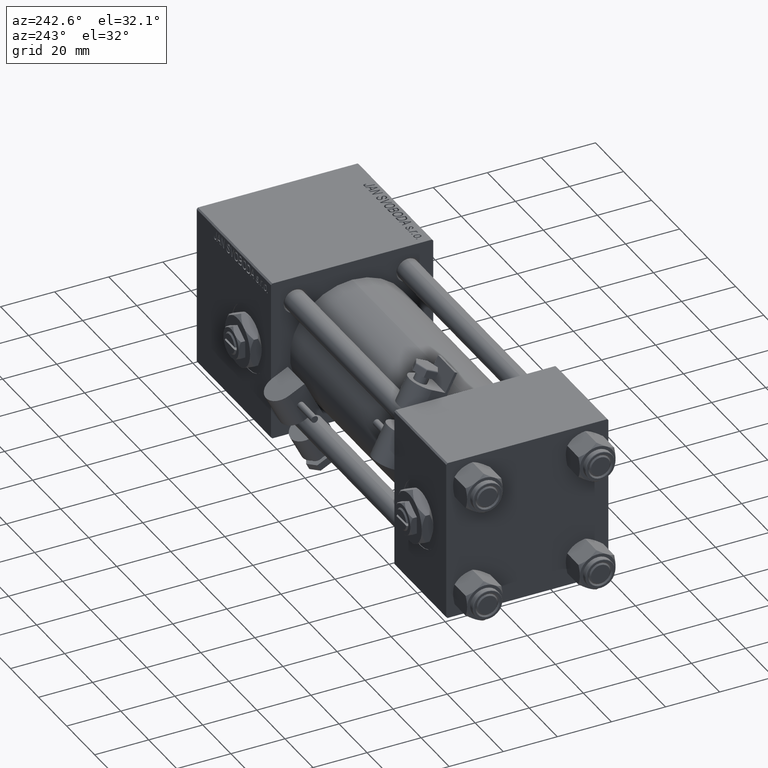
[diagram: clean part render]
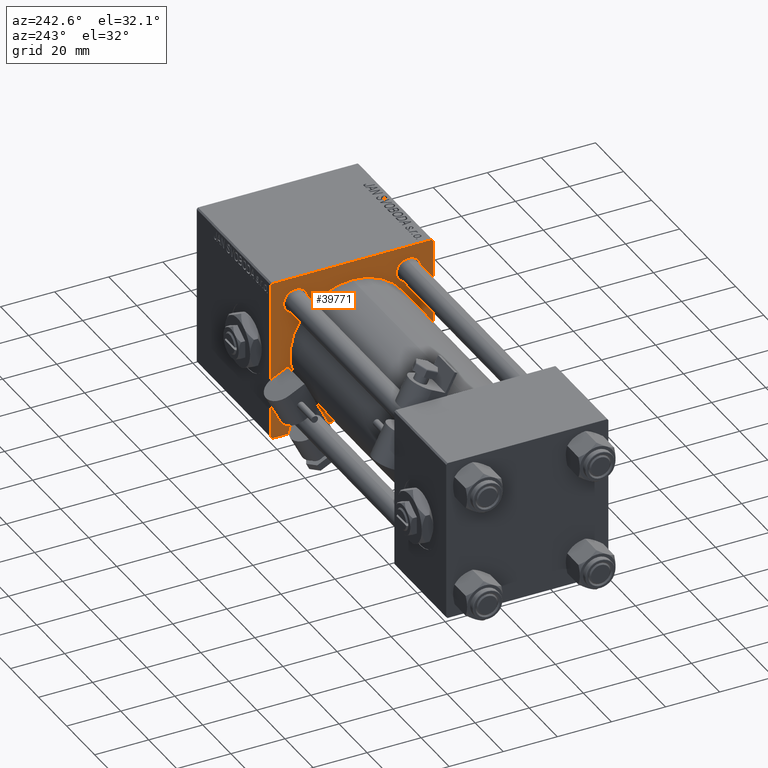
[diagram: same view with one face highlighted and labeled with its STEP entity id]
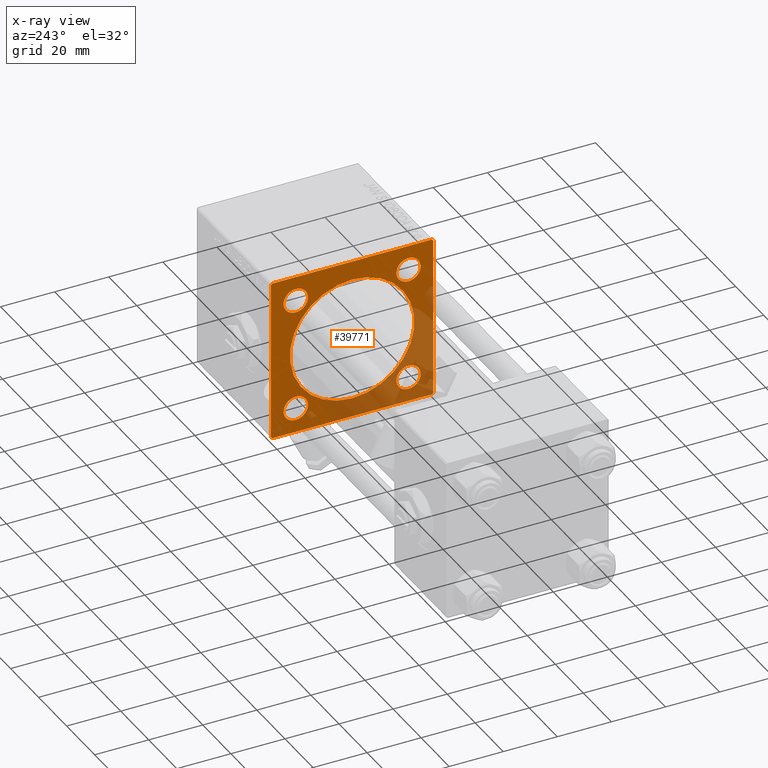
[diagram: x-ray of the same camera — body ghosted, the highlighted face saturated]
A machine part, auxiliary view. The second image highlights one B-rep face of the part: STEP entity #39771.
The next image is the same camera in x-ray: the body ghosted, the highlighted face saturated — about 33% of this face is hidden behind the body in this view.
In plain terms, the highlighted planar face has unit normal (-1, 0, 0).
Its self-contained STEP definition (entity closure, byte-faithful):
#202 = DIRECTION ( 'NONE',  ( 1.000000000000000000, -0.000000000000000000, 0.000000000000000000 ) ) ;
#314 = AXIS2_PLACEMENT_3D ( 'NONE', #37153, #202, #16663 ) ;
#448 = LINE ( 'NONE', #37410, #18639 ) ;
#710 = DIRECTION ( 'NONE',  ( -0.000000000000000000, -0.7071067811865672237, -0.7071067811865279218 ) ) ;
#795 = CARTESIAN_POINT ( 'NONE',  ( 125.0000000000000000, -2.602085213965210642E-15, 0.000000000000000000 ) ) ;
#1149 = VECTOR ( 'NONE', #19885, 1000.000000000000000 ) ;
#1462 = EDGE_CURVE ( 'NONE', #39950, #11173, #36284, .T. ) ;
#1861 = VERTEX_POINT ( 'NONE', #31246 ) ;
#2158 = DIRECTION ( 'NONE',  ( 0.000000000000000000, -1.000000000000000000, -1.156482317317871478E-16 ) ) ;
#2314 = LINE ( 'NONE', #35224, #49119 ) ;
#2408 = ORIENTED_EDGE ( 'NONE', *, *, #21132, .T. ) ;
#3061 = VERTEX_POINT ( 'NONE', #29158 ) ;
#3155 = ORIENTED_EDGE ( 'NONE', *, *, #1462, .T. ) ;
#3303 = CARTESIAN_POINT ( 'NONE',  ( 125.0000000000000000, -20.84999999999999076, 20.85000000000000497 ) ) ;
#3321 = DIRECTION ( 'NONE',  ( 1.000000000000000000, -0.000000000000000000, 0.000000000000000000 ) ) ;
#3421 = LINE ( 'NONE', #35498, #1149 ) ;
#3822 = VECTOR ( 'NONE', #24135, 1000.000000000000114 ) ;
#4019 = CIRCLE ( 'NONE', #51346, 4.500000000000007105 ) ;
#4496 = LINE ( 'NONE', #29045, #21395 ) ;
#4565 = EDGE_CURVE ( 'NONE', #39633, #49781, #47693, .T. ) ;
#4807 = CIRCLE ( 'NONE', #34922, 4.500000000000007105 ) ;
#5218 = EDGE_CURVE ( 'NONE', #34499, #1861, #26935, .T. ) ;
#6560 = VERTEX_POINT ( 'NONE', #13961 ) ;
#7134 = CARTESIAN_POINT ( 'NONE',  ( 125.0000000000000000, 2.146024240737016609E-16, -23.00000000000000000 ) ) ;
#7144 = CARTESIAN_POINT ( 'NONE',  ( 125.0000000000000000, -20.84999999999999076, -16.34999999999999787 ) ) ;
#7484 = CARTESIAN_POINT ( 'NONE',  ( 125.0000000000000000, 30.00000000000000000, -29.49999999999997868 ) ) ;
#7641 = EDGE_CURVE ( 'NONE', #11173, #39950, #44233, .T. ) ;
#7802 = EDGE_LOOP ( 'NONE', ( #21232, #3155 ) ) ;
#8897 = CARTESIAN_POINT ( 'NONE',  ( 125.0000000000000000, -20.84999999999999076, 20.85000000000000497 ) ) ;
#9313 = ORIENTED_EDGE ( 'NONE', *, *, #4565, .T. ) ;
#9664 = CARTESIAN_POINT ( 'NONE',  ( 125.0000000000000000, 29.50000000000000000, 30.00000000000000000 ) ) ;
#9892 = ORIENTED_EDGE ( 'NONE', *, *, #25744, .T. ) ;
#10054 = DIRECTION ( 'NONE',  ( 1.000000000000000000, -0.000000000000000000, 0.000000000000000000 ) ) ;
#11016 = FACE_BOUND ( 'NONE', #34305, .T. ) ;
#11173 = VERTEX_POINT ( 'NONE', #45130 ) ;
#11300 = EDGE_LOOP ( 'NONE', ( #28769, #2408 ) ) ;
#11636 = VERTEX_POINT ( 'NONE', #23184 ) ;
#12299 = VERTEX_POINT ( 'NONE', #36823 ) ;
#12500 = LINE ( 'NONE', #41089, #3822 ) ;
#12579 = DIRECTION ( 'NONE',  ( 0.000000000000000000, 0.000000000000000000, -1.000000000000000000 ) ) ;
#12878 = ORIENTED_EDGE ( 'NONE', *, *, #21418, .T. ) ;
#13107 = EDGE_CURVE ( 'NONE', #49327, #12299, #41728, .T. ) ;
#13958 = EDGE_CURVE ( 'NONE', #43784, #39633, #23221, .T. ) ;
#13961 = CARTESIAN_POINT ( 'NONE',  ( 125.0000000000000000, 20.84999999999999787, -25.35000000000000853 ) ) ;
#14273 = FACE_BOUND ( 'NONE', #11300, .T. ) ;
#14931 = DIRECTION ( 'NONE',  ( 1.000000000000000000, -0.000000000000000000, 0.000000000000000000 ) ) ;
#15248 = VERTEX_POINT ( 'NONE', #45786 ) ;
#15404 = DIRECTION ( 'NONE',  ( 0.000000000000000000, 0.7071067811865474617, -0.7071067811865474617 ) ) ;
#15670 = ORIENTED_EDGE ( 'NONE', *, *, #5218, .T. ) ;
#15720 = DIRECTION ( 'NONE',  ( 1.000000000000000000, 0.000000000000000000, 0.000000000000000000 ) ) ;
#15756 = DIRECTION ( 'NONE',  ( 0.000000000000000000, 0.000000000000000000, 1.000000000000000000 ) ) ;
#15930 = DIRECTION ( 'NONE',  ( 1.000000000000000000, -0.000000000000000000, 0.000000000000000000 ) ) ;
#16042 = ORIENTED_EDGE ( 'NONE', *, *, #46402, .T. ) ;
#16083 = EDGE_CURVE ( 'NONE', #12299, #49327, #4807, .T. ) ;
#16246 = CIRCLE ( 'NONE', #34295, 4.500000000000007105 ) ;
#16400 = DIRECTION ( 'NONE',  ( 0.000000000000000000, 0.000000000000000000, 1.000000000000000000 ) ) ;
#16663 = DIRECTION ( 'NONE',  ( 0.000000000000000000, 0.000000000000000000, 1.000000000000000000 ) ) ;
#17097 = AXIS2_PLACEMENT_3D ( 'NONE', #52859, #15930, #32359 ) ;
#17785 = DIRECTION ( 'NONE',  ( 0.000000000000000000, 0.000000000000000000, -1.000000000000000000 ) ) ;
#18269 = EDGE_LOOP ( 'NONE', ( #37451, #20677, #49110, #25771, #53250, #47346, #9313, #12878 ) ) ;
#18639 = VECTOR ( 'NONE', #710, 1000.000000000000000 ) ;
#18688 = DIRECTION ( 'NONE',  ( 0.000000000000000000, 0.000000000000000000, 1.000000000000000000 ) ) ;
#18867 = CARTESIAN_POINT ( 'NONE',  ( 125.0000000000000000, 30.00000000000000000, 30.00000000000000000 ) ) ;
#18934 = CIRCLE ( 'NONE', #22405, 4.500000000000007105 ) ;
#19060 = DIRECTION ( 'NONE',  ( 0.000000000000000000, -0.7071067811865474617, 0.7071067811865474617 ) ) ;
#19128 = DIRECTION ( 'NONE',  ( -1.000000000000000000, 0.000000000000000000, -0.000000000000000000 ) ) ;
#19714 = CARTESIAN_POINT ( 'NONE',  ( 125.0000000000000000, -20.84999999999999076, 25.35000000000001208 ) ) ;
#19724 = DIRECTION ( 'NONE',  ( 0.000000000000000000, 0.000000000000000000, 1.000000000000000000 ) ) ;
#19885 = DIRECTION ( 'NONE',  ( 0.000000000000000000, -1.000000000000000000, -1.156482317317871478E-16 ) ) ;
#20677 = ORIENTED_EDGE ( 'NONE', *, *, #34074, .T. ) ;
#21132 = EDGE_CURVE ( 'NONE', #41291, #22195, #4019, .T. ) ;
#21232 = ORIENTED_EDGE ( 'NONE', *, *, #7641, .T. ) ;
#21395 = VECTOR ( 'NONE', #12579, 1000.000000000000000 ) ;
#21418 = EDGE_CURVE ( 'NONE', #49781, #3061, #448, .T. ) ;
#22092 = DIRECTION ( 'NONE',  ( 1.000000000000000000, 0.000000000000000000, 0.000000000000000000 ) ) ;
#22104 = PLANE ( 'NONE',  #47623 ) ;
#22195 = VERTEX_POINT ( 'NONE', #19714 ) ;
#22405 = AXIS2_PLACEMENT_3D ( 'NONE', #8897, #3321, #52675 ) ;
#22929 = EDGE_LOOP ( 'NONE', ( #9892, #16042 ) ) ;
#23140 = EDGE_CURVE ( 'NONE', #1861, #34499, #28213, .T. ) ;
#23184 = CARTESIAN_POINT ( 'NONE',  ( 125.0000000000000000, 20.84999999999999787, -16.34999999999999432 ) ) ;
#23221 = LINE ( 'NONE', #31561, #47726 ) ;
#23849 = CARTESIAN_POINT ( 'NONE',  ( 125.0000000000000000, 20.84999999999999787, 20.85000000000000142 ) ) ;
#23949 = AXIS2_PLACEMENT_3D ( 'NONE', #795, #22092, #17785 ) ;
#24135 = DIRECTION ( 'NONE',  ( -0.000000000000000000, 0.7071067811865474617, 0.7071067811865474617 ) ) ;
#24603 = DIRECTION ( 'NONE',  ( 1.000000000000000000, -0.000000000000000000, 0.000000000000000000 ) ) ;
#24828 = CIRCLE ( 'NONE', #17097, 4.500000000000007105 ) ;
#25744 = EDGE_CURVE ( 'NONE', #11636, #6560, #16246, .T. ) ;
#25771 = ORIENTED_EDGE ( 'NONE', *, *, #42644, .T. ) ;
#26411 = FACE_OUTER_BOUND ( 'NONE', #18269, .T. ) ;
#26881 = CARTESIAN_POINT ( 'NONE',  ( 125.0000000000000000, 20.84999999999999787, 16.34999999999999432 ) ) ;
#26935 = CIRCLE ( 'NONE', #45890, 23.00000000000000000 ) ;
#27889 = CARTESIAN_POINT ( 'NONE',  ( 125.0000000000000000, -29.50000000000000000, 29.99999999999999289 ) ) ;
#28118 = CARTESIAN_POINT ( 'NONE',  ( 125.0000000000000000, -2.602085213965210642E-15, 0.000000000000000000 ) ) ;
#28213 = CIRCLE ( 'NONE', #23949, 23.00000000000000000 ) ;
#28378 = DIRECTION ( 'NONE',  ( 0.000000000000000000, 0.000000000000000000, -1.000000000000000000 ) ) ;
#28382 = CARTESIAN_POINT ( 'NONE',  ( 125.0000000000000000, -30.00000000000000000, 29.49999999999999289 ) ) ;
#28645 = DIRECTION ( 'NONE',  ( 0.000000000000000000, 0.000000000000000000, 1.000000000000000000 ) ) ;
#28769 = ORIENTED_EDGE ( 'NONE', *, *, #32335, .T. ) ;
#28888 = CARTESIAN_POINT ( 'NONE',  ( 125.0000000000000000, 30.00000000000000000, 29.50000000000000000 ) ) ;
#29016 = CARTESIAN_POINT ( 'NONE',  ( 125.0000000000000000, -20.84999999999999076, 16.34999999999999787 ) ) ;
#29045 = CARTESIAN_POINT ( 'NONE',  ( 125.0000000000000000, -30.00000000000000000, 29.99999999999999289 ) ) ;
#29096 = VERTEX_POINT ( 'NONE', #37984 ) ;
#29158 = CARTESIAN_POINT ( 'NONE',  ( 125.0000000000000000, 29.49999999999997158, -29.99999999999999289 ) ) ;
#30330 = VECTOR ( 'NONE', #47969, 1000.000000000000000 ) ;
#30974 = FACE_BOUND ( 'NONE', #49251, .T. ) ;
#31246 = CARTESIAN_POINT ( 'NONE',  ( 125.0000000000000000, -2.602085213965210642E-15, 23.00000000000000000 ) ) ;
#31561 = CARTESIAN_POINT ( 'NONE',  ( 125.0000000000000000, 29.74999999999999645, 29.74999999999999645 ) ) ;
#32335 = EDGE_CURVE ( 'NONE', #22195, #41291, #18934, .T. ) ;
#32359 = DIRECTION ( 'NONE',  ( 0.000000000000000000, 0.000000000000000000, 1.000000000000000000 ) ) ;
#33099 = AXIS2_PLACEMENT_3D ( 'NONE', #36897, #41450, #16400 ) ;
#34074 = EDGE_CURVE ( 'NONE', #15248, #29096, #2314, .T. ) ;
#34295 = AXIS2_PLACEMENT_3D ( 'NONE', #49616, #49348, #19724 ) ;
#34305 = EDGE_LOOP ( 'NONE', ( #49297, #15670 ) ) ;
#34499 = VERTEX_POINT ( 'NONE', #7134 ) ;
#34922 = AXIS2_PLACEMENT_3D ( 'NONE', #38651, #10054, #18688 ) ;
#35224 = CARTESIAN_POINT ( 'NONE',  ( 125.0000000000000000, -29.74999999999999645, -29.74999999999999645 ) ) ;
#35498 = CARTESIAN_POINT ( 'NONE',  ( 125.0000000000000000, 30.00000000000000000, -29.99999999999999289 ) ) ;
#35864 = VECTOR ( 'NONE', #2158, 1000.000000000000000 ) ;
#36284 = CIRCLE ( 'NONE', #50899, 4.500000000000007105 ) ;
#36617 = VERTEX_POINT ( 'NONE', #27889 ) ;
#36823 = CARTESIAN_POINT ( 'NONE',  ( 125.0000000000000000, -20.84999999999999076, -25.35000000000001208 ) ) ;
#36897 = CARTESIAN_POINT ( 'NONE',  ( 125.0000000000000000, -20.84999999999999076, -20.85000000000000497 ) ) ;
#37153 = CARTESIAN_POINT ( 'NONE',  ( 125.0000000000000000, 20.84999999999999787, 20.85000000000000142 ) ) ;
#37410 = CARTESIAN_POINT ( 'NONE',  ( 125.0000000000000000, 29.74999999999916156, -29.75000000000081712 ) ) ;
#37451 = ORIENTED_EDGE ( 'NONE', *, *, #40113, .T. ) ;
#37984 = CARTESIAN_POINT ( 'NONE',  ( 125.0000000000000000, -30.00000000000000000, -29.49999999999998579 ) ) ;
#38651 = CARTESIAN_POINT ( 'NONE',  ( 125.0000000000000000, -20.84999999999999076, -20.85000000000000497 ) ) ;
#39329 = FACE_BOUND ( 'NONE', #22929, .T. ) ;
#39633 = VERTEX_POINT ( 'NONE', #28888 ) ;
#39771 = ADVANCED_FACE ( 'NONE', ( #14273, #47408, #39329, #30974, #11016, #26411 ), #22104, .T. ) ;
#39950 = VERTEX_POINT ( 'NONE', #26881 ) ;
#40113 = EDGE_CURVE ( 'NONE', #3061, #15248, #3421, .T. ) ;
#41089 = CARTESIAN_POINT ( 'NONE',  ( 125.0000000000000000, -29.74999999999999645, 29.74999999999999645 ) ) ;
#41291 = VERTEX_POINT ( 'NONE', #29016 ) ;
#41450 = DIRECTION ( 'NONE',  ( 1.000000000000000000, -0.000000000000000000, 0.000000000000000000 ) ) ;
#41557 = ORIENTED_EDGE ( 'NONE', *, *, #16083, .T. ) ;
#41728 = CIRCLE ( 'NONE', #33099, 4.500000000000007105 ) ;
#42591 = CARTESIAN_POINT ( 'NONE',  ( 125.0000000000000000, 0.000000000000000000, 0.000000000000000000 ) ) ;
#42644 = EDGE_CURVE ( 'NONE', #46905, #36617, #12500, .T. ) ;
#43425 = LINE ( 'NONE', #51245, #35864 ) ;
#43650 = DIRECTION ( 'NONE',  ( -0.000000000000000000, 0.000000000000000000, 1.000000000000000000 ) ) ;
#43784 = VERTEX_POINT ( 'NONE', #9664 ) ;
#44233 = CIRCLE ( 'NONE', #314, 4.500000000000007105 ) ;
#44797 = EDGE_CURVE ( 'NONE', #43784, #36617, #43425, .T. ) ;
#45130 = CARTESIAN_POINT ( 'NONE',  ( 125.0000000000000000, 20.84999999999999787, 25.35000000000000853 ) ) ;
#45684 = ORIENTED_EDGE ( 'NONE', *, *, #13107, .T. ) ;
#45786 = CARTESIAN_POINT ( 'NONE',  ( 125.0000000000000000, -29.50000000000000000, -30.00000000000000000 ) ) ;
#45890 = AXIS2_PLACEMENT_3D ( 'NONE', #28118, #15720, #28378 ) ;
#46402 = EDGE_CURVE ( 'NONE', #6560, #11636, #24828, .T. ) ;
#46905 = VERTEX_POINT ( 'NONE', #28382 ) ;
#47346 = ORIENTED_EDGE ( 'NONE', *, *, #13958, .T. ) ;
#47408 = FACE_BOUND ( 'NONE', #7802, .T. ) ;
#47623 = AXIS2_PLACEMENT_3D ( 'NONE', #42591, #19128, #43650 ) ;
#47693 = LINE ( 'NONE', #18867, #30330 ) ;
#47726 = VECTOR ( 'NONE', #15404, 1000.000000000000114 ) ;
#47969 = DIRECTION ( 'NONE',  ( 0.000000000000000000, 0.000000000000000000, -1.000000000000000000 ) ) ;
#49110 = ORIENTED_EDGE ( 'NONE', *, *, #50655, .F. ) ;
#49119 = VECTOR ( 'NONE', #19060, 1000.000000000000114 ) ;
#49251 = EDGE_LOOP ( 'NONE', ( #45684, #41557 ) ) ;
#49297 = ORIENTED_EDGE ( 'NONE', *, *, #23140, .T. ) ;
#49327 = VERTEX_POINT ( 'NONE', #7144 ) ;
#49348 = DIRECTION ( 'NONE',  ( 1.000000000000000000, -0.000000000000000000, 0.000000000000000000 ) ) ;
#49616 = CARTESIAN_POINT ( 'NONE',  ( 125.0000000000000000, 20.84999999999999787, -20.85000000000000142 ) ) ;
#49781 = VERTEX_POINT ( 'NONE', #7484 ) ;
#50655 = EDGE_CURVE ( 'NONE', #46905, #29096, #4496, .T. ) ;
#50899 = AXIS2_PLACEMENT_3D ( 'NONE', #23849, #14931, #15756 ) ;
#51245 = CARTESIAN_POINT ( 'NONE',  ( 125.0000000000000000, 30.00000000000000000, 30.00000000000000000 ) ) ;
#51346 = AXIS2_PLACEMENT_3D ( 'NONE', #3303, #24603, #28645 ) ;
#52675 = DIRECTION ( 'NONE',  ( 0.000000000000000000, 0.000000000000000000, 1.000000000000000000 ) ) ;
#52859 = CARTESIAN_POINT ( 'NONE',  ( 125.0000000000000000, 20.84999999999999787, -20.85000000000000142 ) ) ;
#53250 = ORIENTED_EDGE ( 'NONE', *, *, #44797, .F. ) ;